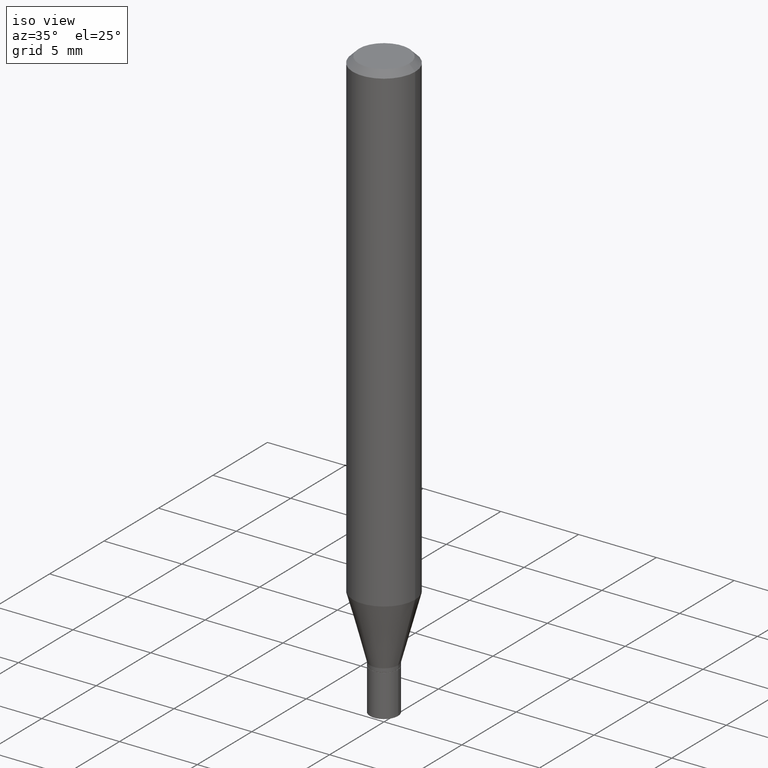
[diagram: clean part render]
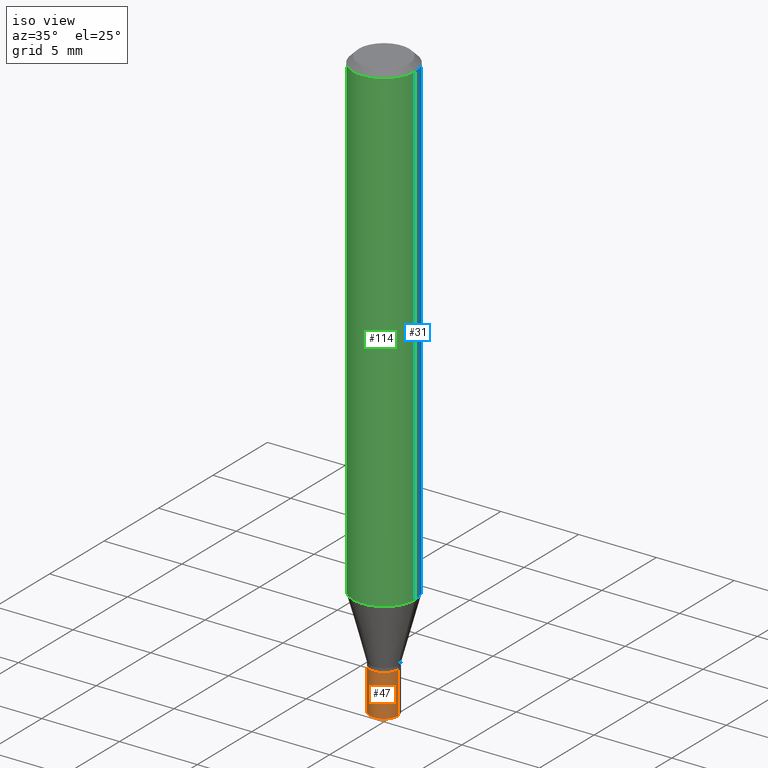
[diagram: same view with three faces highlighted in distinct colors, each labeled with its STEP entity id]
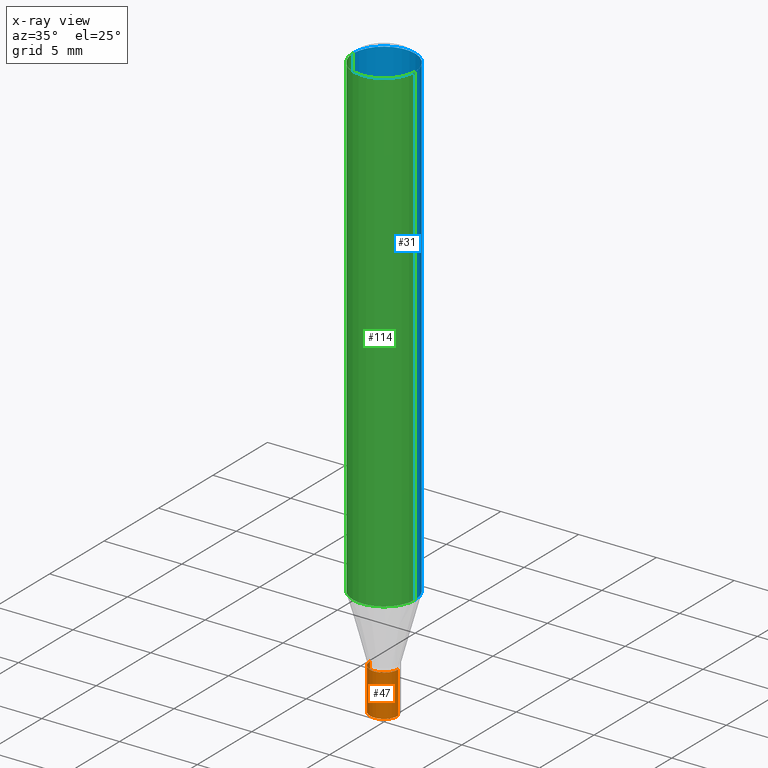
[diagram: x-ray of the same camera — body ghosted, the three highlighted faces saturated]
A machine part, iso view with three faces highlighted in distinct colors.
The next image is the same camera in x-ray (body ghosted, the three faces saturated) — at least one of them is partly hidden behind the body in this view.
Their STEP definitions:

[orange] entity #47 — the highlighted cylindrical surface (edge-blend (fillet) strip) has radius 0.9004 mm, axis along (-0, 0, 1).
#24 = VERTEX_POINT ( 'NONE', #328 ) ;
#26 = DIRECTION ( 'NONE',  ( -2.445468806185136877E-29, 3.491481338843145188E-15, 1.000000000000000000 ) ) ;
#29 = EDGE_LOOP ( 'NONE', ( #68, #316, #446, #91 ) ) ;
#47 = ADVANCED_FACE ( 'NONE', ( #259 ), #357, .T. ) ;
#67 = LINE ( 'NONE', #208, #143 ) ;
#68 = ORIENTED_EDGE ( 'NONE', *, *, #249, .F. ) ;
#91 = ORIENTED_EDGE ( 'NONE', *, *, #216, .F. ) ;
#97 = DIRECTION ( 'NONE',  ( -2.445468806185136597E-29, 3.491481338843145583E-15, 1.000000000000000000 ) ) ;
#99 = LINE ( 'NONE', #455, #354 ) ;
#139 = DIRECTION ( 'NONE',  ( -2.445468806185136877E-29, 3.491481338843145188E-15, 1.000000000000000000 ) ) ;
#143 = VECTOR ( 'NONE', #26, 39.37007874015748143 ) ;
#144 = CARTESIAN_POINT ( 'NONE',  ( 0.000000000000000000, 0.000000000000000000, 0.000000000000000000 ) ) ;
#163 = CIRCLE ( 'NONE', #312, 0.03545000000000000234 ) ;
#166 = EDGE_CURVE ( 'NONE', #411, #452, #163, .T. ) ;
#169 = CARTESIAN_POINT ( 'NONE',  ( 3.408249875180225636E-29, -4.866077541945693107E-15, -1.393700000000000161 ) ) ;
#202 = CIRCLE ( 'NONE', #458, 0.03545000000000000234 ) ;
#208 = CARTESIAN_POINT ( 'NONE',  ( -0.03545000000000000234, 2.518873998269555325E-16, -1.743762489495364089E-30 ) ) ;
#216 = EDGE_CURVE ( 'NONE', #279, #24, #202, .T. ) ;
#217 = CARTESIAN_POINT ( 'NONE',  ( -0.03545000000000000234, -4.799762375278250257E-15, -1.393700000000000161 ) ) ;
#228 = CARTESIAN_POINT ( 'NONE',  ( 0.03545000000000000234, -5.484768035188696060E-15, -1.500000000000000222 ) ) ;
#240 = CARTESIAN_POINT ( 'NONE',  ( 3.668203209277704895E-29, -5.237222008264718177E-15, -1.500000000000000222 ) ) ;
#249 = EDGE_CURVE ( 'NONE', #411, #279, #67, .T. ) ;
#258 = EDGE_CURVE ( 'NONE', #452, #24, #99, .T. ) ;
#259 = FACE_OUTER_BOUND ( 'NONE', #29, .T. ) ;
#275 = CARTESIAN_POINT ( 'NONE',  ( -0.03545000000000000234, -4.799762375278250257E-15, -1.500000000000000222 ) ) ;
#277 = DIRECTION ( 'NONE',  ( 1.000000000000000000, -6.982962677686254089E-15, 0.000000000000000000 ) ) ;
#279 = VERTEX_POINT ( 'NONE', #217 ) ;
#280 = AXIS2_PLACEMENT_3D ( 'NONE', #144, #390, #457 ) ;
#312 = AXIS2_PLACEMENT_3D ( 'NONE', #240, #345, #277 ) ;
#316 = ORIENTED_EDGE ( 'NONE', *, *, #166, .T. ) ;
#328 = CARTESIAN_POINT ( 'NONE',  ( 0.03545000000000000234, -5.113623568869670202E-15, -1.393700000000000161 ) ) ;
#345 = DIRECTION ( 'NONE',  ( -2.445468806185136597E-29, 3.491481338843145583E-15, 1.000000000000000000 ) ) ;
#354 = VECTOR ( 'NONE', #139, 39.37007874015748143 ) ;
#357 = CYLINDRICAL_SURFACE ( 'NONE', #280, 0.03545000000000000234 ) ;
#390 = DIRECTION ( 'NONE',  ( -2.445468806185136597E-29, 3.491481338843145583E-15, 1.000000000000000000 ) ) ;
#411 = VERTEX_POINT ( 'NONE', #275 ) ;
#418 = DIRECTION ( 'NONE',  ( 1.000000000000000000, -6.982962677686254089E-15, 0.000000000000000000 ) ) ;
#446 = ORIENTED_EDGE ( 'NONE', *, *, #258, .T. ) ;
#452 = VERTEX_POINT ( 'NONE', #228 ) ;
#455 = CARTESIAN_POINT ( 'NONE',  ( 0.03545000000000000234, -2.475460269239781793E-16, 1.728604667019659440E-30 ) ) ;
#457 = DIRECTION ( 'NONE',  ( 1.000000000000000000, -6.982962677686266711E-15, 4.876176775795935793E-29 ) ) ;
#458 = AXIS2_PLACEMENT_3D ( 'NONE', #169, #97, #418 ) ;

[blue] entity #31 — the highlighted cylindrical surface (partial cylindrical patch) has radius 2.0002 mm, axis along (-0, 0, 1).
#13 = EDGE_CURVE ( 'NONE', #17, #87, #405, .T. ) ;
#17 = VERTEX_POINT ( 'NONE', #464 ) ;
#21 = CIRCLE ( 'NONE', #433, 0.07875000000000000056 ) ;
#30 = VECTOR ( 'NONE', #247, 39.37007874015748143 ) ;
#31 = ADVANCED_FACE ( 'NONE', ( #358 ), #291, .T. ) ;
#33 = CARTESIAN_POINT ( 'NONE',  ( -0.07875000000000001443, -3.708442065562388790E-15, -1.222402200032267405 ) ) ;
#73 = LINE ( 'NONE', #100, #30 ) ;
#87 = VERTEX_POINT ( 'NONE', #98 ) ;
#92 = ORIENTED_EDGE ( 'NONE', *, *, #460, .T. ) ;
#98 = CARTESIAN_POINT ( 'NONE',  ( -0.07875000000000000056, -1.600630940616978731E-15, -0.01499999999999999944 ) ) ;
#100 = CARTESIAN_POINT ( 'NONE',  ( 0.07875000000000000056, -5.499083108677934443E-16, 3.839989210939299016E-30 ) ) ;
#102 = EDGE_CURVE ( 'NONE', #237, #17, #73, .T. ) ;
#106 = DIRECTION ( 'NONE',  ( 1.000000000000000000, -6.982962677686265922E-15, 4.876176775795935232E-29 ) ) ;
#132 = VERTEX_POINT ( 'NONE', #33 ) ;
#146 = DIRECTION ( 'NONE',  ( 1.000000000000000000, -6.982962677686261977E-15, 0.000000000000000000 ) ) ;
#151 = DIRECTION ( 'NONE',  ( -2.445468806185136877E-29, 3.491481338843145188E-15, 1.000000000000000000 ) ) ;
#173 = ORIENTED_EDGE ( 'NONE', *, *, #13, .F. ) ;
#183 = DIRECTION ( 'NONE',  ( -2.445468806185136597E-29, 3.491481338843145583E-15, 1.000000000000000000 ) ) ;
#198 = CARTESIAN_POINT ( 'NONE',  ( 0.07875000000000001443, -4.817902780841260937E-15, -1.222402200032267405 ) ) ;
#209 = EDGE_LOOP ( 'NONE', ( #210, #92, #173, #234 ) ) ;
#210 = ORIENTED_EDGE ( 'NONE', *, *, #337, .T. ) ;
#234 = ORIENTED_EDGE ( 'NONE', *, *, #102, .F. ) ;
#237 = VERTEX_POINT ( 'NONE', #198 ) ;
#247 = DIRECTION ( 'NONE',  ( -2.445468806185136877E-29, 3.491481338843145188E-15, 1.000000000000000000 ) ) ;
#253 = CARTESIAN_POINT ( 'NONE',  ( 0.000000000000000000, 0.000000000000000000, 0.000000000000000000 ) ) ;
#257 = DIRECTION ( 'NONE',  ( -2.445468806185136597E-29, 3.491481338843145583E-15, 1.000000000000000000 ) ) ;
#291 = CYLINDRICAL_SURFACE ( 'NONE', #414, 0.07875000000000000056 ) ;
#309 = LINE ( 'NONE', #447, #466 ) ;
#330 = CARTESIAN_POINT ( 'NONE',  ( 2.989346448790993832E-29, -4.267994469973468380E-15, -1.222402200032267405 ) ) ;
#337 = EDGE_CURVE ( 'NONE', #237, #132, #21, .T. ) ;
#358 = FACE_OUTER_BOUND ( 'NONE', #209, .T. ) ;
#359 = AXIS2_PLACEMENT_3D ( 'NONE', #393, #361, #463 ) ;
#361 = DIRECTION ( 'NONE',  ( -2.445468806185136597E-29, 3.491481338843145583E-15, 1.000000000000000000 ) ) ;
#393 = CARTESIAN_POINT ( 'NONE',  ( 3.668203209277705088E-31, -5.237222008264718399E-17, -0.01499999999999999944 ) ) ;
#405 = CIRCLE ( 'NONE', #359, 0.07875000000000000056 ) ;
#414 = AXIS2_PLACEMENT_3D ( 'NONE', #253, #257, #106 ) ;
#433 = AXIS2_PLACEMENT_3D ( 'NONE', #330, #183, #146 ) ;
#447 = CARTESIAN_POINT ( 'NONE',  ( -0.07875000000000000056, 5.595524044110789003E-16, -3.873661383575737792E-30 ) ) ;
#460 = EDGE_CURVE ( 'NONE', #132, #87, #309, .T. ) ;
#463 = DIRECTION ( 'NONE',  ( 1.000000000000000000, -6.982962677686265922E-15, 0.000000000000000000 ) ) ;
#464 = CARTESIAN_POINT ( 'NONE',  ( 0.07875000000000000056, -6.022805309504406221E-16, -0.01499999999999999944 ) ) ;
#466 = VECTOR ( 'NONE', #151, 39.37007874015748143 ) ;

[green] entity #114 — the highlighted cylindrical surface (partial cylindrical patch) has radius 2.0002 mm, axis along (-0, 0, 1).
#17 = VERTEX_POINT ( 'NONE', #464 ) ;
#27 = EDGE_LOOP ( 'NONE', ( #344, #130, #105, #196 ) ) ;
#30 = VECTOR ( 'NONE', #247, 39.37007874015748143 ) ;
#33 = CARTESIAN_POINT ( 'NONE',  ( -0.07875000000000001443, -3.708442065562388790E-15, -1.222402200032267405 ) ) ;
#73 = LINE ( 'NONE', #100, #30 ) ;
#76 = CIRCLE ( 'NONE', #313, 0.07875000000000000056 ) ;
#79 = DIRECTION ( 'NONE',  ( -2.445468806185136597E-29, 3.491481338843145583E-15, 1.000000000000000000 ) ) ;
#87 = VERTEX_POINT ( 'NONE', #98 ) ;
#98 = CARTESIAN_POINT ( 'NONE',  ( -0.07875000000000000056, -1.600630940616978731E-15, -0.01499999999999999944 ) ) ;
#100 = CARTESIAN_POINT ( 'NONE',  ( 0.07875000000000000056, -5.499083108677934443E-16, 3.839989210939299016E-30 ) ) ;
#102 = EDGE_CURVE ( 'NONE', #237, #17, #73, .T. ) ;
#105 = ORIENTED_EDGE ( 'NONE', *, *, #102, .T. ) ;
#114 = ADVANCED_FACE ( 'NONE', ( #140 ), #176, .T. ) ;
#130 = ORIENTED_EDGE ( 'NONE', *, *, #366, .T. ) ;
#132 = VERTEX_POINT ( 'NONE', #33 ) ;
#140 = FACE_OUTER_BOUND ( 'NONE', #27, .T. ) ;
#145 = DIRECTION ( 'NONE',  ( 1.000000000000000000, -6.982962677686265922E-15, 0.000000000000000000 ) ) ;
#149 = CIRCLE ( 'NONE', #222, 0.07875000000000000056 ) ;
#151 = DIRECTION ( 'NONE',  ( -2.445468806185136877E-29, 3.491481338843145188E-15, 1.000000000000000000 ) ) ;
#176 = CYLINDRICAL_SURFACE ( 'NONE', #352, 0.07875000000000000056 ) ;
#196 = ORIENTED_EDGE ( 'NONE', *, *, #300, .F. ) ;
#198 = CARTESIAN_POINT ( 'NONE',  ( 0.07875000000000001443, -4.817902780841260937E-15, -1.222402200032267405 ) ) ;
#222 = AXIS2_PLACEMENT_3D ( 'NONE', #399, #79, #334 ) ;
#237 = VERTEX_POINT ( 'NONE', #198 ) ;
#247 = DIRECTION ( 'NONE',  ( -2.445468806185136877E-29, 3.491481338843145188E-15, 1.000000000000000000 ) ) ;
#281 = DIRECTION ( 'NONE',  ( 1.000000000000000000, -6.982962677686265922E-15, 4.876176775795935232E-29 ) ) ;
#300 = EDGE_CURVE ( 'NONE', #87, #17, #76, .T. ) ;
#303 = CARTESIAN_POINT ( 'NONE',  ( 3.668203209277705088E-31, -5.237222008264718399E-17, -0.01499999999999999944 ) ) ;
#309 = LINE ( 'NONE', #447, #466 ) ;
#313 = AXIS2_PLACEMENT_3D ( 'NONE', #303, #327, #145 ) ;
#327 = DIRECTION ( 'NONE',  ( -2.445468806185136597E-29, 3.491481338843145583E-15, 1.000000000000000000 ) ) ;
#334 = DIRECTION ( 'NONE',  ( 1.000000000000000000, -6.982962677686261977E-15, 0.000000000000000000 ) ) ;
#344 = ORIENTED_EDGE ( 'NONE', *, *, #460, .F. ) ;
#351 = CARTESIAN_POINT ( 'NONE',  ( 0.000000000000000000, 0.000000000000000000, 0.000000000000000000 ) ) ;
#352 = AXIS2_PLACEMENT_3D ( 'NONE', #351, #387, #281 ) ;
#366 = EDGE_CURVE ( 'NONE', #132, #237, #149, .T. ) ;
#387 = DIRECTION ( 'NONE',  ( -2.445468806185136597E-29, 3.491481338843145583E-15, 1.000000000000000000 ) ) ;
#399 = CARTESIAN_POINT ( 'NONE',  ( 2.989346448790993832E-29, -4.267994469973468380E-15, -1.222402200032267405 ) ) ;
#447 = CARTESIAN_POINT ( 'NONE',  ( -0.07875000000000000056, 5.595524044110789003E-16, -3.873661383575737792E-30 ) ) ;
#460 = EDGE_CURVE ( 'NONE', #132, #87, #309, .T. ) ;
#464 = CARTESIAN_POINT ( 'NONE',  ( 0.07875000000000000056, -6.022805309504406221E-16, -0.01499999999999999944 ) ) ;
#466 = VECTOR ( 'NONE', #151, 39.37007874015748143 ) ;